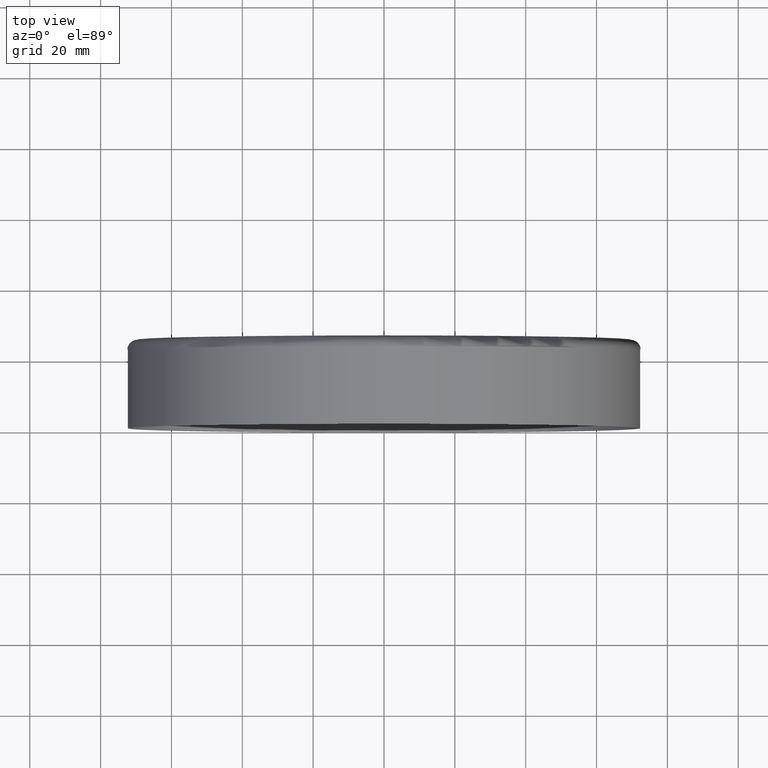
[diagram: clean part render]
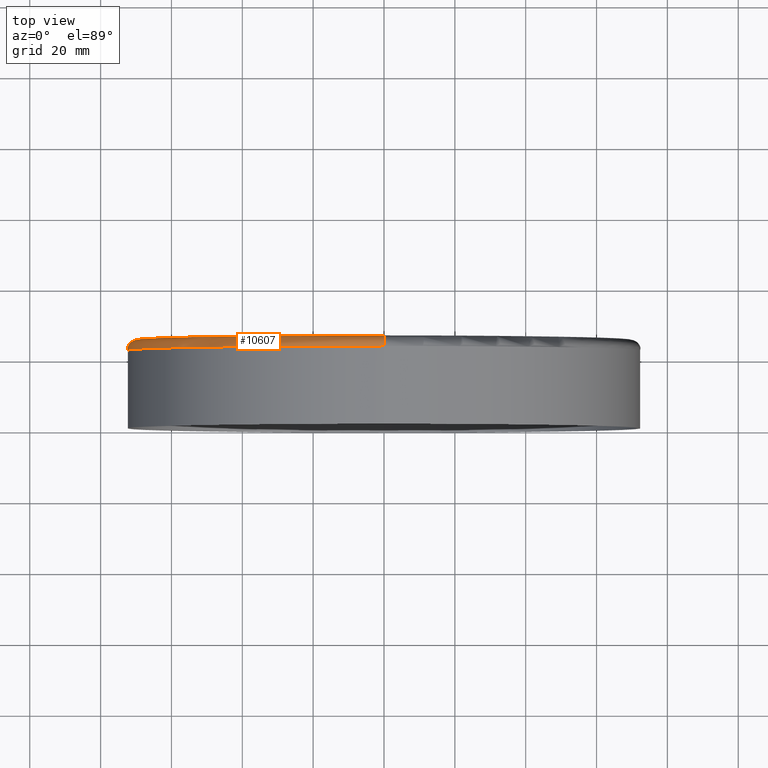
[diagram: same view with one face highlighted and labeled with its STEP entity id]
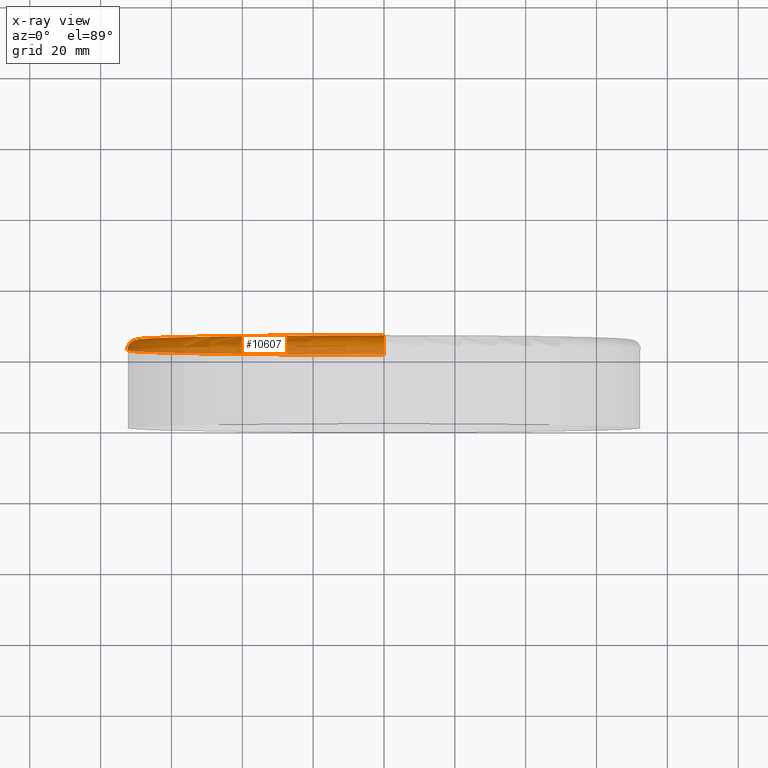
[diagram: x-ray of the same camera — body ghosted, the highlighted face saturated]
A machine part, top view. The second image highlights one B-rep face of the part: STEP entity #10607.
The next image is the same camera in x-ray: the body ghosted, the highlighted face saturated — about 41% of this face is hidden behind the body in this view.
In plain terms, the highlighted toroidal blend (fillet) surface has major radius 69.5 mm and minor (blend) radius 3 mm.
Its self-contained STEP definition (entity closure, byte-faithful):
#60 = DIRECTION ( 'NONE',  ( 0.000000000000000000, 0.000000000000000000, -1.000000000000000000 ) ) ;
#498 = DIRECTION ( 'NONE',  ( 0.000000000000000000, 0.000000000000000000, 1.000000000000000000 ) ) ;
#512 = EDGE_CURVE ( 'NONE', #2169, #6599, #9487, .T. ) ;
#831 = VERTEX_POINT ( 'NONE', #15596 ) ;
#1897 = DIRECTION ( 'NONE',  ( 0.000000000000000000, 0.000000000000000000, -1.000000000000000000 ) ) ;
#2169 = VERTEX_POINT ( 'NONE', #4624 ) ;
#2623 = CARTESIAN_POINT ( 'NONE',  ( 8.511295254074103841E-15, 22.00000000000000355, 69.49999999999998579 ) ) ;
#2823 = ORIENTED_EDGE ( 'NONE', *, *, #13671, .T. ) ;
#3726 = ORIENTED_EDGE ( 'NONE', *, *, #512, .F. ) ;
#3959 = AXIS2_PLACEMENT_3D ( 'NONE', #9554, #14646, #8418 ) ;
#4624 = CARTESIAN_POINT ( 'NONE',  ( 8.878689293818309285E-15, 22.00000000000000355, 72.50000000000000000 ) ) ;
#4982 = DIRECTION ( 'NONE',  ( -0.000000000000000000, -1.000000000000000000, -0.000000000000000000 ) ) ;
#5427 = EDGE_CURVE ( 'NONE', #831, #13619, #13696, .T. ) ;
#6599 = VERTEX_POINT ( 'NONE', #15351 ) ;
#6698 = CARTESIAN_POINT ( 'NONE',  ( 0.000000000000000000, 22.00000000000000355, -69.49999999999998579 ) ) ;
#6799 = AXIS2_PLACEMENT_3D ( 'NONE', #6698, #10384, #498 ) ;
#7137 = TOROIDAL_SURFACE ( 'NONE', #11767, 69.49999999999998579, 3.000000000000000888 ) ;
#8418 = DIRECTION ( 'NONE',  ( 0.000000000000000000, 0.000000000000000000, -1.000000000000000000 ) ) ;
#8839 = CIRCLE ( 'NONE', #6799, 3.000000000000002665 ) ;
#8870 = DIRECTION ( 'NONE',  ( -1.224646799147354440E-16, 0.000000000000000000, -1.000000000000000000 ) ) ;
#9275 = DIRECTION ( 'NONE',  ( -0.000000000000000000, -1.000000000000000000, -0.000000000000000000 ) ) ;
#9487 = CIRCLE ( 'NONE', #14515, 72.50000000000000000 ) ;
#9554 = CARTESIAN_POINT ( 'NONE',  ( 0.000000000000000000, 25.00000000000000000, 0.000000000000000000 ) ) ;
#10384 = DIRECTION ( 'NONE',  ( -1.000000000000000000, 0.000000000000000000, 0.000000000000000000 ) ) ;
#10607 = ADVANCED_FACE ( 'NONE', ( #13545 ), #7137, .T. ) ;
#11446 = ORIENTED_EDGE ( 'NONE', *, *, #5427, .T. ) ;
#11767 = AXIS2_PLACEMENT_3D ( 'NONE', #12397, #4982, #60 ) ;
#12397 = CARTESIAN_POINT ( 'NONE',  ( 0.000000000000000000, 22.00000000000000355, 0.000000000000000000 ) ) ;
#12463 = DIRECTION ( 'NONE',  ( 1.000000000000000000, 0.000000000000000000, -1.224646799147353207E-16 ) ) ;
#12609 = ORIENTED_EDGE ( 'NONE', *, *, #15496, .F. ) ;
#13545 = FACE_OUTER_BOUND ( 'NONE', #14370, .T. ) ;
#13619 = VERTEX_POINT ( 'NONE', #13859 ) ;
#13671 = EDGE_CURVE ( 'NONE', #13619, #6599, #8839, .T. ) ;
#13676 = CIRCLE ( 'NONE', #15407, 3.000000000000002665 ) ;
#13696 = CIRCLE ( 'NONE', #3959, 69.49999999999998579 ) ;
#13859 = CARTESIAN_POINT ( 'NONE',  ( 0.000000000000000000, 25.00000000000000000, -69.49999999999998579 ) ) ;
#14370 = EDGE_LOOP ( 'NONE', ( #12609, #11446, #2823, #3726 ) ) ;
#14515 = AXIS2_PLACEMENT_3D ( 'NONE', #15674, #9275, #1897 ) ;
#14646 = DIRECTION ( 'NONE',  ( -0.000000000000000000, -1.000000000000000000, -0.000000000000000000 ) ) ;
#15351 = CARTESIAN_POINT ( 'NONE',  ( 0.000000000000000000, 22.00000000000000355, -72.50000000000000000 ) ) ;
#15407 = AXIS2_PLACEMENT_3D ( 'NONE', #2623, #12463, #8870 ) ;
#15496 = EDGE_CURVE ( 'NONE', #831, #2169, #13676, .T. ) ;
#15596 = CARTESIAN_POINT ( 'NONE',  ( 8.694992273946206563E-15, 25.00000000000000000, 69.49999999999998579 ) ) ;
#15674 = CARTESIAN_POINT ( 'NONE',  ( 0.000000000000000000, 22.00000000000000355, 0.000000000000000000 ) ) ;